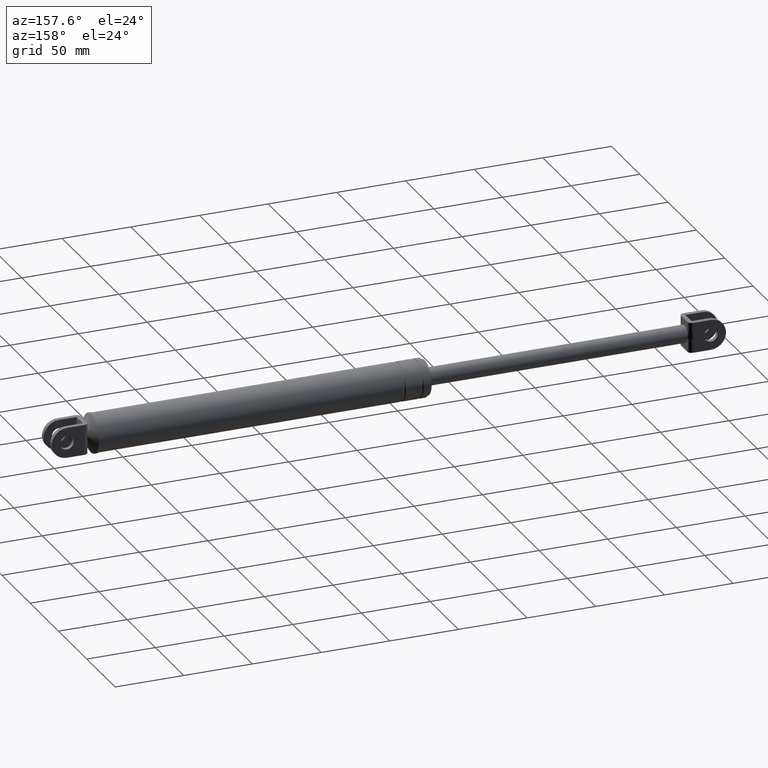
[diagram: clean part render]
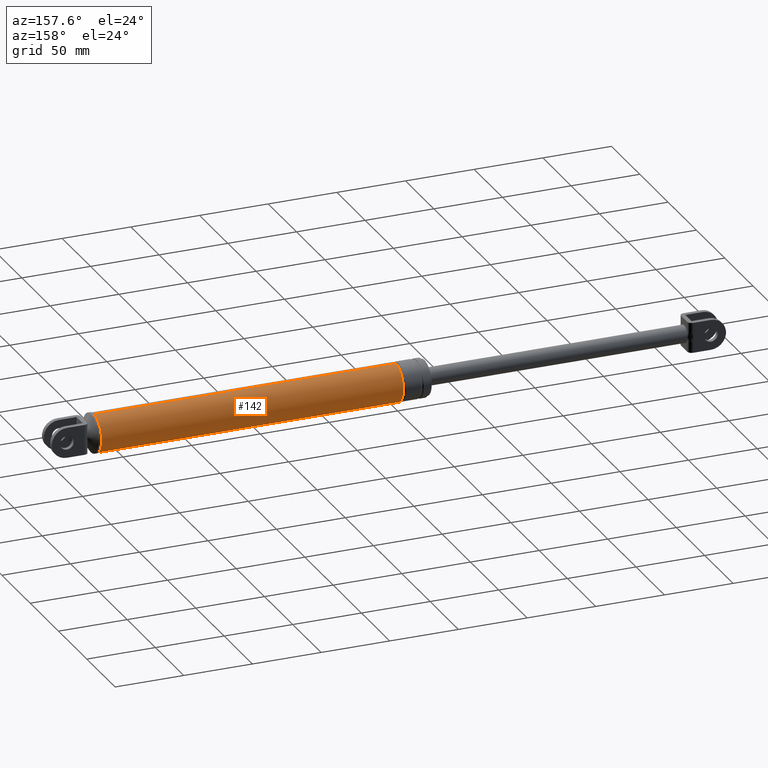
[diagram: same view with one face highlighted and labeled with its STEP entity id]
A machine part, auxiliary view. The second image highlights one B-rep face of the part: STEP entity #142.
In plain terms, the highlighted cylindrical surface (edge-blend (fillet) strip) has radius 13.7 mm, axis along (1, 0, 0).
Its self-contained STEP definition (entity closure, byte-faithful):
#142=ADVANCED_FACE('',(#483),#482,.T.);
#482=CYLINDRICAL_SURFACE('',#1161,1.37000000000E+001);
#483=FACE_OUTER_BOUND('',#1162,.T.);
#1158=CARTESIAN_POINT('',(0.00000000000E+000,0.00000000000E+000,1.77640306030E+002));
#1159=DIRECTION('',(1.00000000000E+000,-0.00000000000E+000,-0.00000000000E+000));
#1160=DIRECTION('',(-0.00000000000E+000,-0.00000000000E+000,-1.00000000000E+000));
#1161=AXIS2_PLACEMENT_3D('',#1158,#1159,#1160);
#1162=EDGE_LOOP('',(#1540,#1541,#1542,#1543));
#1540=ORIENTED_EDGE('',*,*,#1769,.T.);
#1541=ORIENTED_EDGE('',*,*,#1790,.F.);
#1542=ORIENTED_EDGE('',*,*,#1784,.F.);
#1543=ORIENTED_EDGE('',*,*,#1791,.T.);
#1769=EDGE_CURVE('',#2269,#2268,#2276,.T.);
#1784=EDGE_CURVE('',#2372,#2373,#2374,.T.);
#1790=EDGE_CURVE('',#2373,#2268,#2412,.T.);
#1791=EDGE_CURVE('',#2372,#2269,#2418,.T.);
#2268=VERTEX_POINT('',#3168);
#2269=VERTEX_POINT('',#3169);
#2276=CIRCLE('',#3177,1.37000000000E+001);
#2372=VERTEX_POINT('',#3232);
#2373=VERTEX_POINT('',#3233);
#2374=CIRCLE('',#3237,1.37000000000E+001);
#2412=(BOUNDED_CURVE() B_SPLINE_CURVE(1,(#3264,#3265),.UNSPECIFIED.,.F.,.F.) B_SPLINE_CURVE_WITH_KNOTS((2,2),(4.16666666047E-002,9.58333333447E-001),.UNSPECIFIED.) CURVE() GEOMETRIC_REPRESENTATION_ITEM() RATIONAL_B_SPLINE_CURVE((1.00000000000E+000,1.00000000000E+000)) REPRESENTATION_ITEM('') );
#2418=(BOUNDED_CURVE() B_SPLINE_CURVE(1,(#3266,#3267),.UNSPECIFIED.,.F.,.F.) B_SPLINE_CURVE_WITH_KNOTS((2,2),(4.16666666667E-002,9.58333333333E-001),.UNSPECIFIED.) CURVE() GEOMETRIC_REPRESENTATION_ITEM() RATIONAL_B_SPLINE_CURVE((7.50000000000E-001,7.50000000000E-001)) REPRESENTATION_ITEM('') );
#3168=CARTESIAN_POINT('',(4.21425759764E+002,5.92118946467E-016,1.63940306030E+002));
#3169=CARTESIAN_POINT('',(4.21425759764E+002,0.00000000000E+000,1.91340306030E+002));
#3174=CARTESIAN_POINT('',(4.21425759764E+002,0.00000000000E+000,1.77640306030E+002));
#3175=DIRECTION('',(-1.00000000000E+000,0.00000000000E+000,0.00000000000E+000));
#3176=DIRECTION('',(0.00000000000E+000,-1.22460635382E-016,1.00000000000E+000));
#3177=AXIS2_PLACEMENT_3D('',#3174,#3175,#3176);
#3232=CARTESIAN_POINT('',(2.01425759764E+002,0.00000000000E+000,1.91340306030E+002));
#3233=CARTESIAN_POINT('',(2.01425759764E+002,5.92118946467E-016,1.63940306030E+002));
#3234=CARTESIAN_POINT('',(2.01425759764E+002,0.00000000000E+000,1.77640306030E+002));
#3235=DIRECTION('',(-1.00000000000E+000,0.00000000000E+000,0.00000000000E+000));
#3236=DIRECTION('',(0.00000000000E+000,-1.22460635382E-016,1.00000000000E+000));
#3237=AXIS2_PLACEMENT_3D('',#3234,#3235,#3236);
#3264=CARTESIAN_POINT('',(2.01425759749E+002,0.00000000000E+000,1.63940306030E+002));
#3265=CARTESIAN_POINT('',(4.21425759791E+002,0.00000000000E+000,1.63940306030E+002));
#3266=CARTESIAN_POINT('',(2.01425759764E+002,0.00000000000E+000,1.91340306030E+002));
#3267=CARTESIAN_POINT('',(4.21425759764E+002,0.00000000000E+000,1.91340306030E+002));